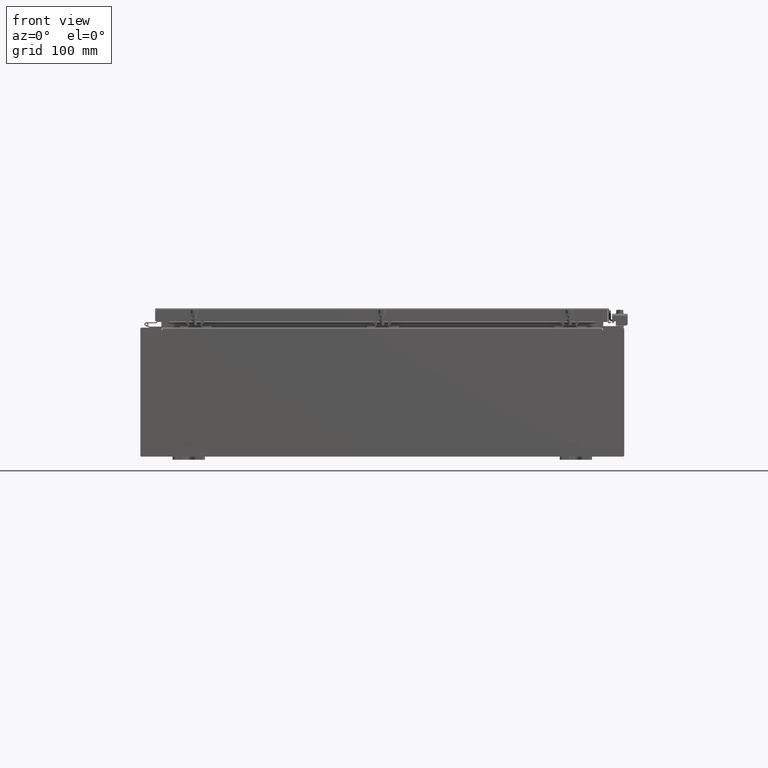
[diagram: clean part render]
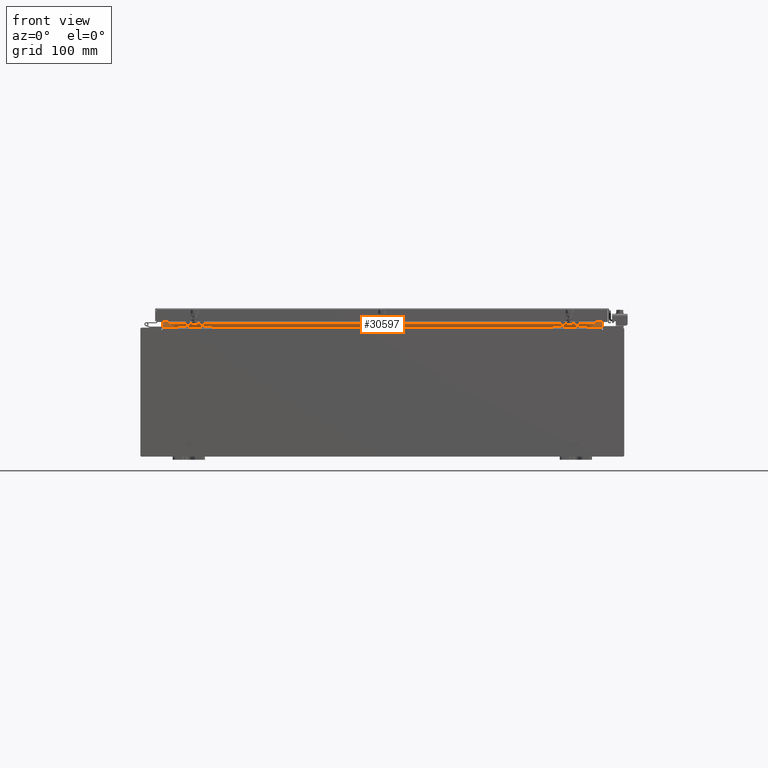
[diagram: same view with one face highlighted and labeled with its STEP entity id]
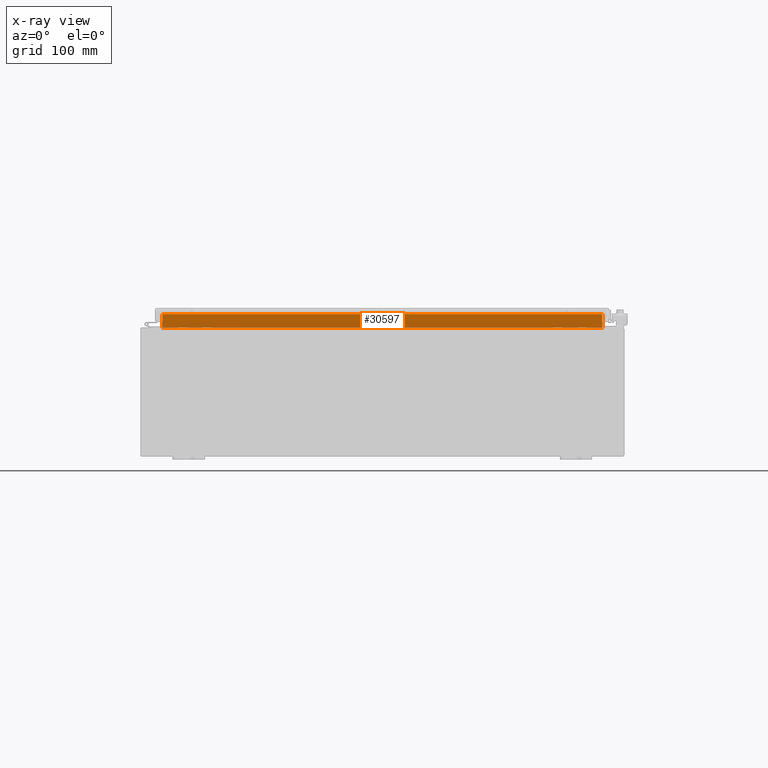
[diagram: x-ray of the same camera — body ghosted, the highlighted face saturated]
A machine part, front view. The second image highlights one B-rep face of the part: STEP entity #30597.
The next image is the same camera in x-ray: the body ghosted, the highlighted face saturated — about 0% of this face is hidden behind the body in this view.
In plain terms, the highlighted planar face has unit normal (0, -1, 0).
Its self-contained STEP definition (entity closure, byte-faithful):
#2349 = CARTESIAN_POINT ( 'NONE',  ( 0.0000000000000000000, -1.300299999999999800, 0.0000000000000000000 ) ) ;
#2547 = LINE ( 'NONE', #15618, #34207 ) ;
#3968 = ORIENTED_EDGE ( 'NONE', *, *, #23458, .F. ) ;
#5361 = DIRECTION ( 'NONE',  ( 0.0000000000000000000, 1.000000000000000000, 0.0000000000000000000 ) ) ;
#7474 = AXIS2_PLACEMENT_3D ( 'NONE', #2349, #5361, #26116 ) ;
#7768 = CARTESIAN_POINT ( 'NONE',  ( -13.63719999999999800, -1.300299999999999800, 4.000000000000004400 ) ) ;
#9081 = FACE_OUTER_BOUND ( 'NONE', #37760, .T. ) ;
#11518 = VERTEX_POINT ( 'NONE', #30083 ) ;
#12000 = VECTOR ( 'NONE', #24464, 39.37007874015748100 ) ;
#12583 = VERTEX_POINT ( 'NONE', #25576 ) ;
#12664 = DIRECTION ( 'NONE',  ( -0.0000000000000000000, -0.0000000000000000000, 1.000000000000000000 ) ) ;
#12745 = VECTOR ( 'NONE', #14836, 39.37007874015748100 ) ;
#14836 = DIRECTION ( 'NONE',  ( -1.000000000000000000, -0.0000000000000000000, -0.0000000000000000000 ) ) ;
#15618 = CARTESIAN_POINT ( 'NONE',  ( 13.63720000000000400, -1.300299999999999800, 4.925300000000004500 ) ) ;
#15948 = EDGE_CURVE ( 'NONE', #11518, #30865, #20643, .T. ) ;
#16122 = VECTOR ( 'NONE', #22536, 39.37007874015748100 ) ;
#17064 = LINE ( 'NONE', #7768, #16122 ) ;
#18480 = CARTESIAN_POINT ( 'NONE',  ( -13.63719999999999800, -1.300299999999999800, 4.013000000000003500 ) ) ;
#19595 = EDGE_CURVE ( 'NONE', #20936, #12583, #20820, .T. ) ;
#20143 = PLANE ( 'NONE',  #7474 ) ;
#20643 = LINE ( 'NONE', #26672, #12745 ) ;
#20820 = LINE ( 'NONE', #18480, #12000 ) ;
#20936 = VERTEX_POINT ( 'NONE', #27897 ) ;
#22536 = DIRECTION ( 'NONE',  ( -0.0000000000000000000, -0.0000000000000000000, -1.000000000000000000 ) ) ;
#22603 = ORIENTED_EDGE ( 'NONE', *, *, #19595, .F. ) ;
#23458 = EDGE_CURVE ( 'NONE', #30865, #20936, #17064, .T. ) ;
#24464 = DIRECTION ( 'NONE',  ( 1.000000000000000000, 0.0000000000000000000, -2.003232330437526000E-017 ) ) ;
#25576 = CARTESIAN_POINT ( 'NONE',  ( 13.63720000000000000, -1.300299999999999800, 4.013000000000003500 ) ) ;
#26116 = DIRECTION ( 'NONE',  ( 0.0000000000000000000, -0.0000000000000000000, 1.000000000000000000 ) ) ;
#26393 = ORIENTED_EDGE ( 'NONE', *, *, #15948, .F. ) ;
#26672 = CARTESIAN_POINT ( 'NONE',  ( 13.63720000000000400, -1.300299999999999300, 4.837600000000003700 ) ) ;
#27897 = CARTESIAN_POINT ( 'NONE',  ( -13.63719999999999800, -1.300299999999999800, 4.013000000000003500 ) ) ;
#30083 = CARTESIAN_POINT ( 'NONE',  ( 13.63720000000000400, -1.300299999999999800, 4.837600000000003700 ) ) ;
#30389 = CARTESIAN_POINT ( 'NONE',  ( -13.63719999999999800, -1.300299999999999300, 4.837600000000003700 ) ) ;
#30597 = ADVANCED_FACE ( 'NONE', ( #9081 ), #20143, .T. ) ;
#30865 = VERTEX_POINT ( 'NONE', #30389 ) ;
#31518 = EDGE_CURVE ( 'NONE', #12583, #11518, #2547, .T. ) ;
#34207 = VECTOR ( 'NONE', #12664, 39.37007874015748100 ) ;
#35903 = ORIENTED_EDGE ( 'NONE', *, *, #31518, .F. ) ;
#37760 = EDGE_LOOP ( 'NONE', ( #3968, #26393, #35903, #22603 ) ) ;